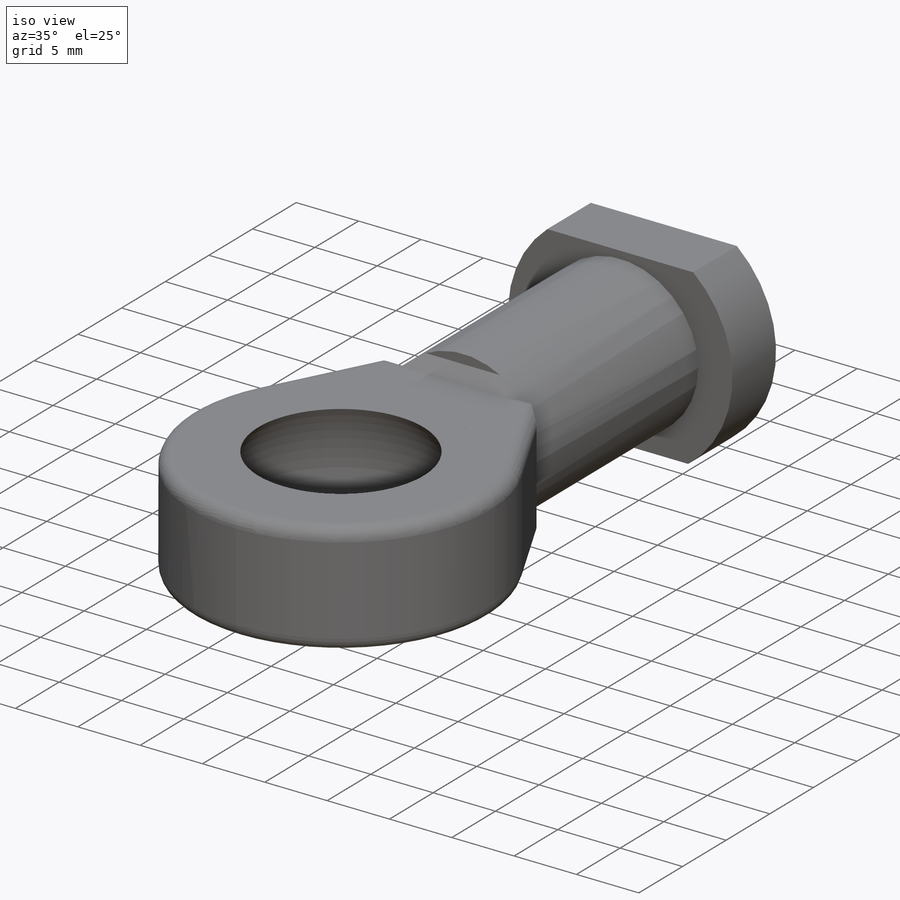
[diagram: iso view]
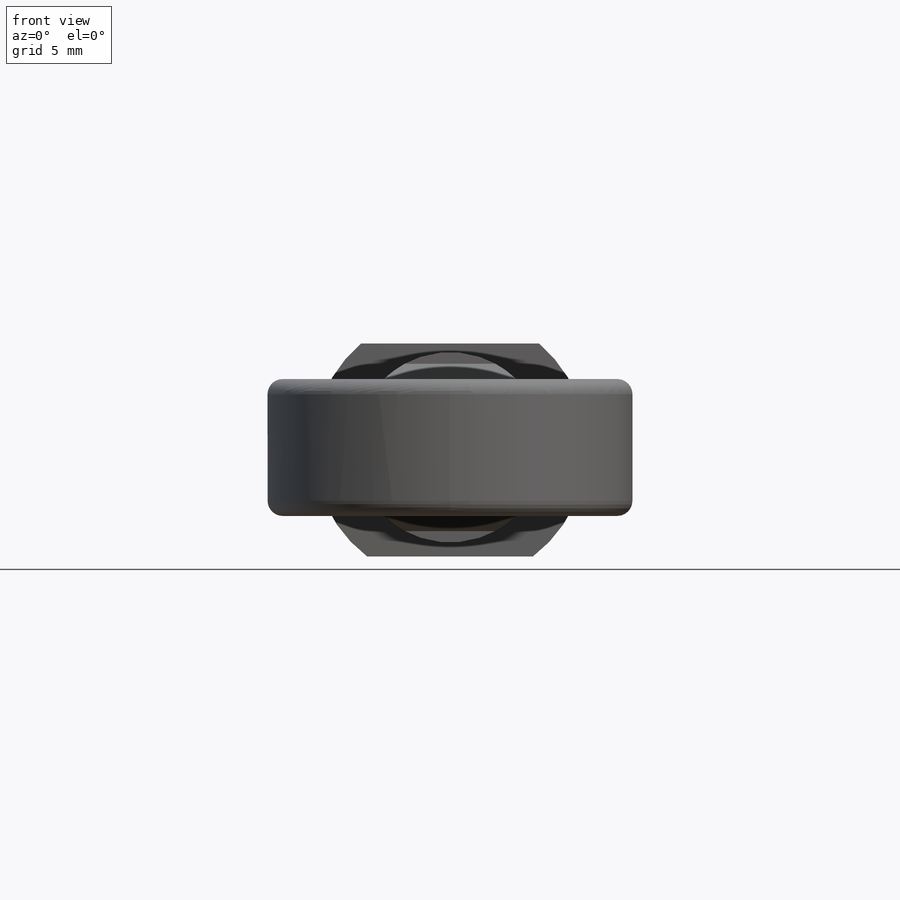
[diagram: front view]
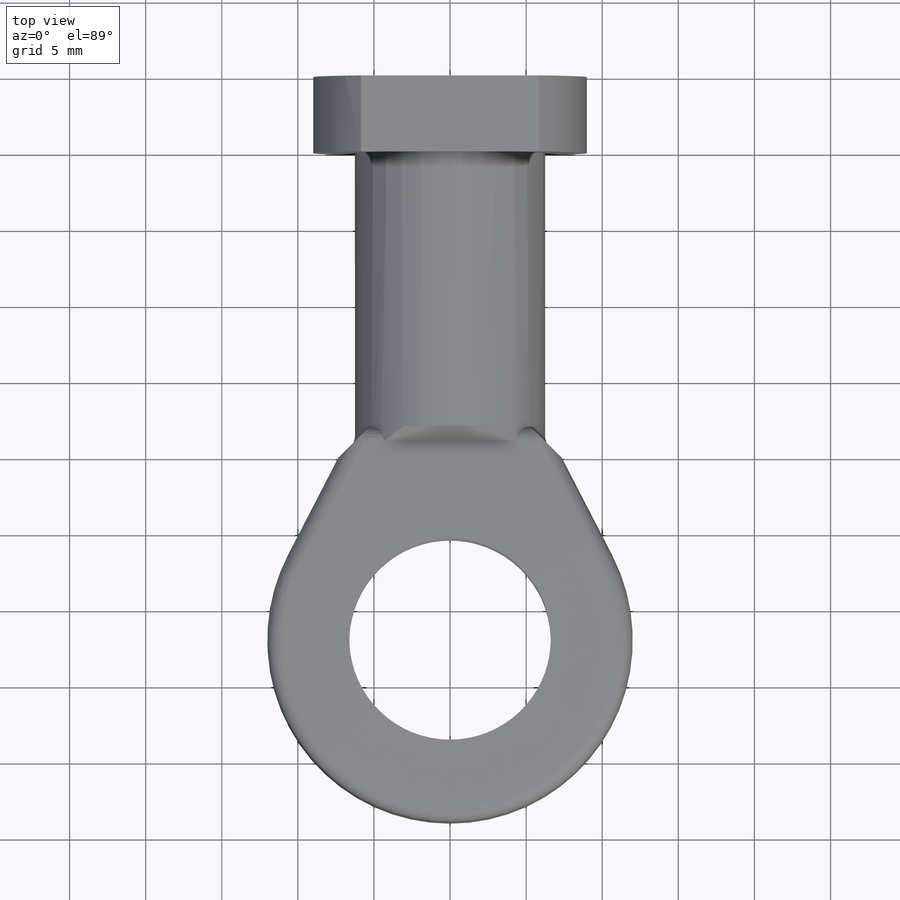
[diagram: top view]
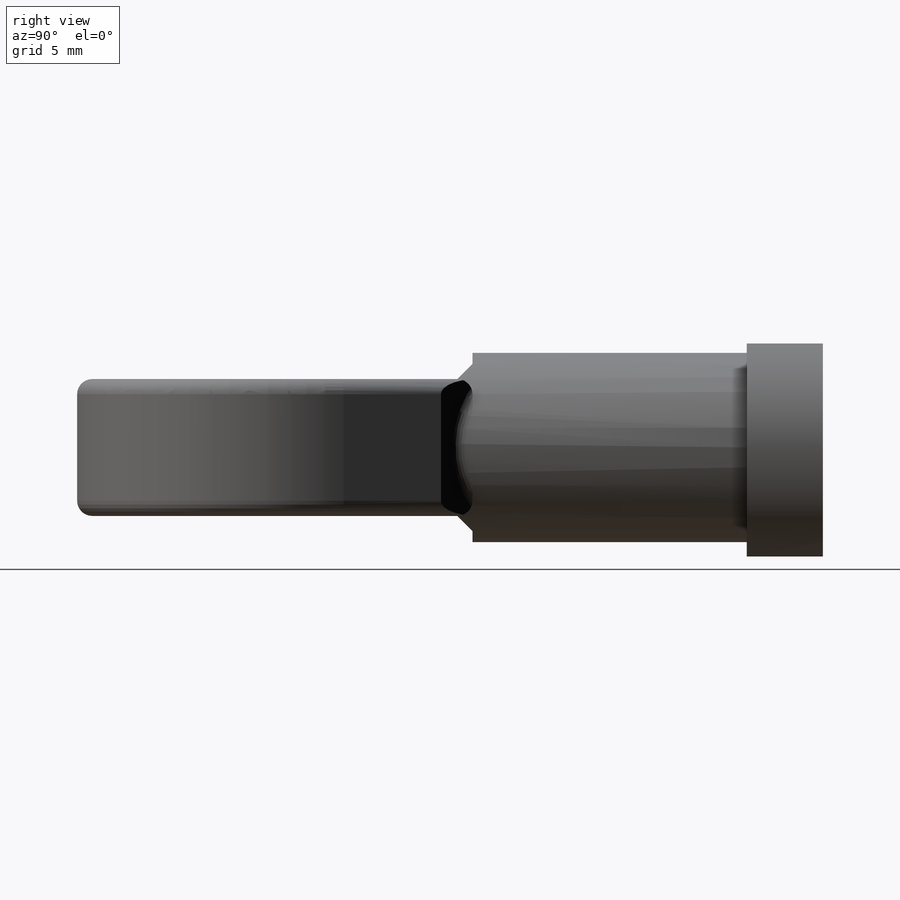
[diagram: right view]
SOLIDWORKS PART (.sldprt)
format: sldprt  version: not decoded by parser v0  size: 528,384 bytes
history: native  units: mm
features: sketch x10, cut_extrude x4, extrude x3, fillet x3, chamfer x2, material x1, mirror x1, cut_revolve x1, revolve x1 (+13 scaffold rows collapsed)
feature tree (39):
  scaffold x13  (default folders/planes/origin — collapsed)
  material  "Material <not specified>"
  sketch  "Sketch1"  dims[D1=8.0mm D2=12.5mm D3=18.0mm D4=9.0mm D5=14.0mm]
  extrude  "Boss-Extrude1"  Depth=5mm
  sketch  "Sketch2"  dims[D1=12.5mm]
  extrude  "Boss-Extrude2"  Depth=35mm
  sketch  "Sketch3"  dims[D1=24.0mm D2=32.0mm]
  extrude  "Boss-Extrude3"  Depth=4.5mm
  sketch  "Sketch4"
  cut_extrude  "Cut-Extrude1"  Depth=4.5mm
  sketch  "Sketch5"
  cut_extrude  "Cut-Extrude2"  Depth=4.5mm
  chamfer  "Chamfer1"  Distance=1mm Angle=45deg
  sketch  "Sketch6"
  cut_extrude  "Cut-Extrude3"  Depth=15.5mm
  mirror  "Mirror1"
  chamfer  "Chamfer6"  Distance=1mm Angle=45deg
  fillet  "Fillet1"  Radius=1mm
  fillet  "Fillet2"  Radius=1mm
  sketch  "Sketch9"
  sketch  "Sketch10"  dims[D1=20.0mm]
  cut_revolve  "Cut-Revolve1"  Angle=360deg
  sketch  "Sketch11"  dims[D1=20.0mm D2=8.0mm]
  revolve  "Revolve1"  Angle=360deg
  sketch  "Sketch12"
  cut_extrude  "Cut-Extrude4"  Depth=21.5mm
  fillet  "Fillet3"  Radius=1mm
decode coverage: 19 of 25 modeling features carry decoded parameters
note: suppression state not decoded; provenance and decode notes live in map.json
